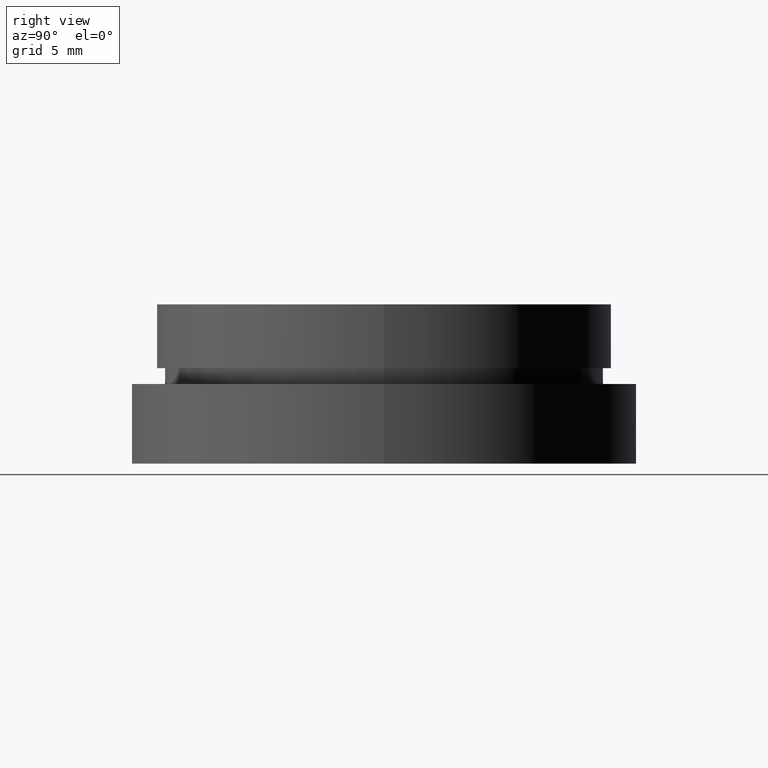
[diagram: clean part render]
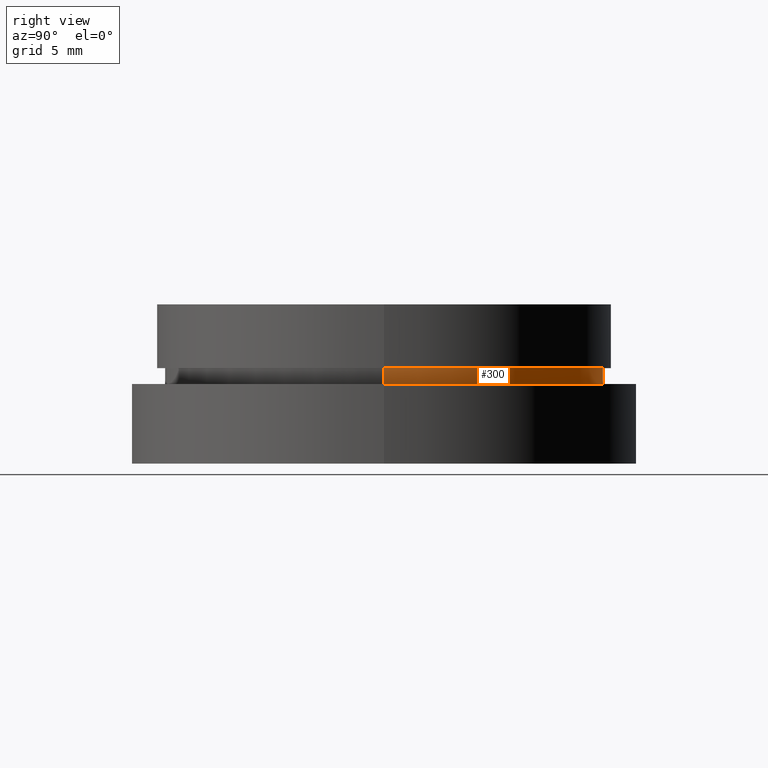
[diagram: same view with one face highlighted and labeled with its STEP entity id]
A machine part, right view. The second image highlights one B-rep face of the part: STEP entity #300.
In plain terms, the highlighted cylindrical surface (partial cylindrical patch) has radius 13.75 mm, axis along (-0, -0, -1).
Its self-contained STEP definition (entity closure, byte-faithful):
#18 = EDGE_LOOP ( 'NONE', ( #54, #181, #118, #210 ) ) ;
#27 = CIRCLE ( 'NONE', #38, 13.75000000000000400 ) ;
#38 = AXIS2_PLACEMENT_3D ( 'NONE', #166, #99, #184 ) ;
#54 = ORIENTED_EDGE ( 'NONE', *, *, #147, .T. ) ;
#60 = CYLINDRICAL_SURFACE ( 'NONE', #152, 13.75000000000000400 ) ;
#68 = LINE ( 'NONE', #242, #125 ) ;
#70 = EDGE_CURVE ( 'NONE', #171, #423, #382, .T. ) ;
#72 = DIRECTION ( 'NONE',  ( -1.000000000000000000, 0.0000000000000000000, 0.0000000000000000000 ) ) ;
#94 = VECTOR ( 'NONE', #165, 1000.000000000000000 ) ;
#95 = VERTEX_POINT ( 'NONE', #365 ) ;
#98 = EDGE_CURVE ( 'NONE', #119, #95, #68, .T. ) ;
#99 = DIRECTION ( 'NONE',  ( -0.0000000000000000000, -0.0000000000000000000, -1.000000000000000000 ) ) ;
#117 = CARTESIAN_POINT ( 'NONE',  ( 13.75000000000000400, 1.683889348827611200E-015, -4.000000000000000000 ) ) ;
#118 = ORIENTED_EDGE ( 'NONE', *, *, #191, .F. ) ;
#119 = VERTEX_POINT ( 'NONE', #383 ) ;
#122 = CARTESIAN_POINT ( 'NONE',  ( 0.0000000000000000000, 0.0000000000000000000, -19.14057971014493000 ) ) ;
#125 = VECTOR ( 'NONE', #164, 1000.000000000000000 ) ;
#147 = EDGE_CURVE ( 'NONE', #119, #171, #177, .T. ) ;
#152 = AXIS2_PLACEMENT_3D ( 'NONE', #122, #154, #72 ) ;
#154 = DIRECTION ( 'NONE',  ( -0.0000000000000000000, -0.0000000000000000000, -1.000000000000000000 ) ) ;
#164 = DIRECTION ( 'NONE',  ( -0.0000000000000000000, -0.0000000000000000000, -1.000000000000000000 ) ) ;
#165 = DIRECTION ( 'NONE',  ( -0.0000000000000000000, -0.0000000000000000000, -1.000000000000000000 ) ) ;
#166 = CARTESIAN_POINT ( 'NONE',  ( 0.0000000000000000000, 0.0000000000000000000, -5.000000000000000900 ) ) ;
#168 = DIRECTION ( 'NONE',  ( -0.0000000000000000000, -0.0000000000000000000, -1.000000000000000000 ) ) ;
#171 = VERTEX_POINT ( 'NONE', #117 ) ;
#177 = CIRCLE ( 'NONE', #262, 13.75000000000000400 ) ;
#181 = ORIENTED_EDGE ( 'NONE', *, *, #70, .T. ) ;
#184 = DIRECTION ( 'NONE',  ( -1.000000000000000000, 0.0000000000000000000, 0.0000000000000000000 ) ) ;
#191 = EDGE_CURVE ( 'NONE', #95, #423, #27, .T. ) ;
#210 = ORIENTED_EDGE ( 'NONE', *, *, #98, .F. ) ;
#240 = DIRECTION ( 'NONE',  ( -1.000000000000000000, 0.0000000000000000000, 0.0000000000000000000 ) ) ;
#242 = CARTESIAN_POINT ( 'NONE',  ( -13.75000000000000400, 0.0000000000000000000, -19.14057971014493000 ) ) ;
#262 = AXIS2_PLACEMENT_3D ( 'NONE', #264, #168, #240 ) ;
#264 = CARTESIAN_POINT ( 'NONE',  ( 0.0000000000000000000, 0.0000000000000000000, -4.000000000000000000 ) ) ;
#300 = ADVANCED_FACE ( 'NONE', ( #341 ), #60, .T. ) ;
#341 = FACE_OUTER_BOUND ( 'NONE', #18, .T. ) ;
#365 = CARTESIAN_POINT ( 'NONE',  ( -13.75000000000000400, 0.0000000000000000000, -5.000000000000000900 ) ) ;
#382 = LINE ( 'NONE', #397, #94 ) ;
#383 = CARTESIAN_POINT ( 'NONE',  ( -13.75000000000000400, 0.0000000000000000000, -4.000000000000000000 ) ) ;
#397 = CARTESIAN_POINT ( 'NONE',  ( 13.75000000000000400, 1.683889348827611200E-015, -19.14057971014493000 ) ) ;
#413 = CARTESIAN_POINT ( 'NONE',  ( 13.75000000000000400, 1.683889348827611200E-015, -5.000000000000000900 ) ) ;
#423 = VERTEX_POINT ( 'NONE', #413 ) ;